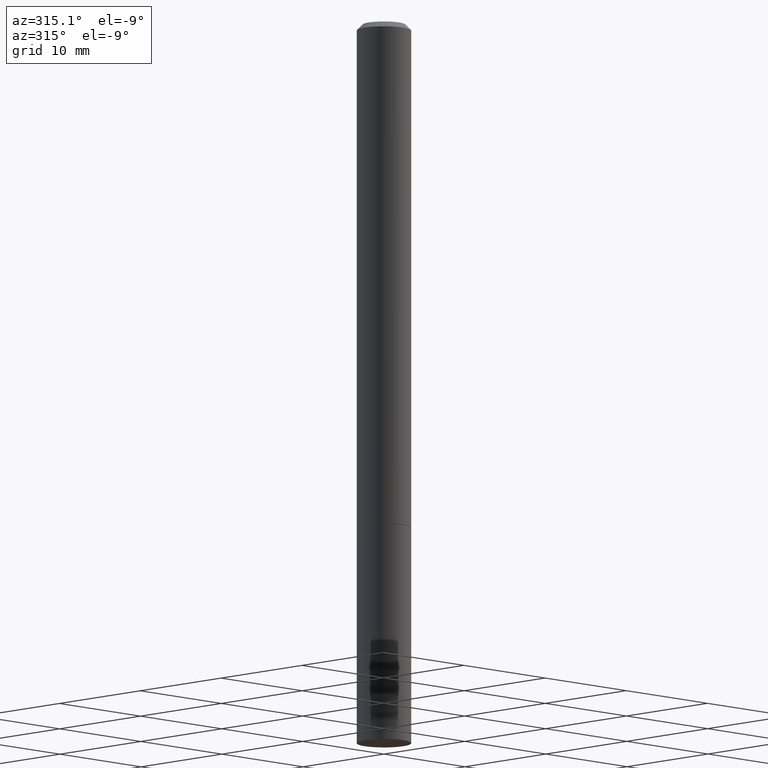
[diagram: clean part render]
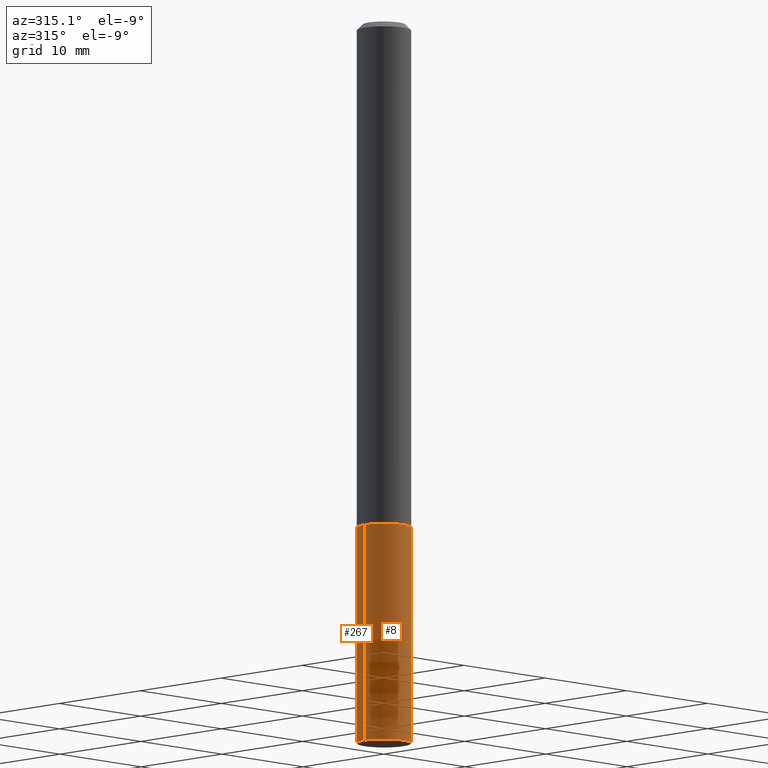
[diagram: same view with one multi-face feature highlighted, each face labeled with its STEP entity id]
A machine part, auxiliary view. The highlighted faces form ONE feature: a constant-radius fillet chain: 2 tangent blend faces with common blend radius 2.3813 mm. The faces share edges in the B-rep.
Their STEP definitions:
[1] entity #8 (Cylinder):
#8 = ADVANCED_FACE ( 'NONE', ( #86 ), #178, .T. ) ;
#11 = DIRECTION ( 'NONE',  ( -2.445468806185136597E-29, 3.491481338843145583E-15, 1.000000000000000000 ) ) ;
#13 = CARTESIAN_POINT ( 'NONE',  ( -0.09375000000000001388, -6.753264030266591277E-15, -2.500000000000000000 ) ) ;
#26 = ORIENTED_EDGE ( 'NONE', *, *, #179, .F. ) ;
#50 = ORIENTED_EDGE ( 'NONE', *, *, #289, .T. ) ;
#86 = FACE_OUTER_BOUND ( 'NONE', #199, .T. ) ;
#93 = AXIS2_PLACEMENT_3D ( 'NONE', #349, #352, #140 ) ;
#103 = EDGE_CURVE ( 'NONE', #322, #303, #159, .T. ) ;
#108 = CARTESIAN_POINT ( 'NONE',  ( 4.279570410823989044E-29, -6.110092342975505460E-15, -1.750000000000000222 ) ) ;
#123 = LINE ( 'NONE', #275, #283 ) ;
#140 = DIRECTION ( 'NONE',  ( 1.000000000000000000, -6.982962677686265922E-15, 4.876176775795935793E-29 ) ) ;
#153 = AXIS2_PLACEMENT_3D ( 'NONE', #202, #11, #200 ) ;
#159 = LINE ( 'NONE', #249, #348 ) ;
#178 = CYLINDRICAL_SURFACE ( 'NONE', #93, 0.09375000000000001388 ) ;
#179 = EDGE_CURVE ( 'NONE', #303, #231, #361, .T. ) ;
#191 = DIRECTION ( 'NONE',  ( -2.445468806185136877E-29, 3.491481338843145188E-15, 1.000000000000000000 ) ) ;
#194 = AXIS2_PLACEMENT_3D ( 'NONE', #108, #218, #336 ) ;
#199 = EDGE_LOOP ( 'NONE', ( #365, #50, #324, #26 ) ) ;
#200 = DIRECTION ( 'NONE',  ( 1.000000000000000000, -6.982962677686272233E-15, 0.000000000000000000 ) ) ;
#202 = CARTESIAN_POINT ( 'NONE',  ( 6.113672015462842613E-29, -8.728703347107864943E-15, -2.500000000000000000 ) ) ;
#213 = DIRECTION ( 'NONE',  ( -2.445468806185136877E-29, 3.491481338843145188E-15, 1.000000000000000000 ) ) ;
#218 = DIRECTION ( 'NONE',  ( -2.445468806185136597E-29, 3.491481338843145583E-15, 1.000000000000000000 ) ) ;
#231 = VERTEX_POINT ( 'NONE', #304 ) ;
#249 = CARTESIAN_POINT ( 'NONE',  ( -0.09375000000000001388, 6.661338147750940229E-16, -4.611501647113973995E-30 ) ) ;
#254 = EDGE_CURVE ( 'NONE', #290, #231, #123, .T. ) ;
#263 = CARTESIAN_POINT ( 'NONE',  ( -0.09375000000000001388, -6.753264030266591277E-15, -1.750000000000000222 ) ) ;
#275 = CARTESIAN_POINT ( 'NONE',  ( 0.09375000000000001388, -6.546527510330875041E-16, 4.571415727308690506E-30 ) ) ;
#283 = VECTOR ( 'NONE', #213, 39.37007874015748143 ) ;
#289 = EDGE_CURVE ( 'NONE', #322, #290, #308, .T. ) ;
#290 = VERTEX_POINT ( 'NONE', #353 ) ;
#303 = VERTEX_POINT ( 'NONE', #263 ) ;
#304 = CARTESIAN_POINT ( 'NONE',  ( 0.09375000000000001388, -6.764745094008592175E-15, -1.750000000000000222 ) ) ;
#308 = CIRCLE ( 'NONE', #153, 0.09375000000000001388 ) ;
#322 = VERTEX_POINT ( 'NONE', #13 ) ;
#324 = ORIENTED_EDGE ( 'NONE', *, *, #254, .T. ) ;
#336 = DIRECTION ( 'NONE',  ( 1.000000000000000000, -6.982962677686261189E-15, 0.000000000000000000 ) ) ;
#348 = VECTOR ( 'NONE', #191, 39.37007874015748143 ) ;
#349 = CARTESIAN_POINT ( 'NONE',  ( 0.000000000000000000, 0.000000000000000000, 0.000000000000000000 ) ) ;
#352 = DIRECTION ( 'NONE',  ( -2.445468806185136597E-29, 3.491481338843145583E-15, 1.000000000000000000 ) ) ;
#353 = CARTESIAN_POINT ( 'NONE',  ( 0.09375000000000001388, -9.383356098140953236E-15, -2.500000000000000000 ) ) ;
#361 = CIRCLE ( 'NONE', #194, 0.09375000000000001388 ) ;
#365 = ORIENTED_EDGE ( 'NONE', *, *, #103, .F. ) ;
[2] entity #267 (Cylinder):
#13 = CARTESIAN_POINT ( 'NONE',  ( -0.09375000000000001388, -6.753264030266591277E-15, -2.500000000000000000 ) ) ;
#27 = CIRCLE ( 'NONE', #331, 0.09375000000000001388 ) ;
#46 = DIRECTION ( 'NONE',  ( -2.445468806185136597E-29, 3.491481338843145583E-15, 1.000000000000000000 ) ) ;
#63 = AXIS2_PLACEMENT_3D ( 'NONE', #176, #173, #257 ) ;
#91 = DIRECTION ( 'NONE',  ( -2.445468806185136597E-29, 3.491481338843145583E-15, 1.000000000000000000 ) ) ;
#103 = EDGE_CURVE ( 'NONE', #322, #303, #159, .T. ) ;
#118 = DIRECTION ( 'NONE',  ( 1.000000000000000000, -6.982962677686265922E-15, 4.876176775795935793E-29 ) ) ;
#122 = FACE_OUTER_BOUND ( 'NONE', #131, .T. ) ;
#123 = LINE ( 'NONE', #275, #283 ) ;
#131 = EDGE_LOOP ( 'NONE', ( #154, #235, #170, #188 ) ) ;
#139 = DIRECTION ( 'NONE',  ( 1.000000000000000000, -6.982962677686261189E-15, 0.000000000000000000 ) ) ;
#154 = ORIENTED_EDGE ( 'NONE', *, *, #246, .T. ) ;
#159 = LINE ( 'NONE', #249, #348 ) ;
#166 = CARTESIAN_POINT ( 'NONE',  ( 4.279570410823989044E-29, -6.110092342975505460E-15, -1.750000000000000222 ) ) ;
#170 = ORIENTED_EDGE ( 'NONE', *, *, #197, .F. ) ;
#173 = DIRECTION ( 'NONE',  ( -2.445468806185136597E-29, 3.491481338843145583E-15, 1.000000000000000000 ) ) ;
#176 = CARTESIAN_POINT ( 'NONE',  ( 6.113672015462842613E-29, -8.728703347107864943E-15, -2.500000000000000000 ) ) ;
#183 = AXIS2_PLACEMENT_3D ( 'NONE', #323, #91, #118 ) ;
#188 = ORIENTED_EDGE ( 'NONE', *, *, #254, .F. ) ;
#191 = DIRECTION ( 'NONE',  ( -2.445468806185136877E-29, 3.491481338843145188E-15, 1.000000000000000000 ) ) ;
#197 = EDGE_CURVE ( 'NONE', #231, #303, #27, .T. ) ;
#209 = CYLINDRICAL_SURFACE ( 'NONE', #183, 0.09375000000000001388 ) ;
#213 = DIRECTION ( 'NONE',  ( -2.445468806185136877E-29, 3.491481338843145188E-15, 1.000000000000000000 ) ) ;
#231 = VERTEX_POINT ( 'NONE', #304 ) ;
#235 = ORIENTED_EDGE ( 'NONE', *, *, #103, .T. ) ;
#240 = CIRCLE ( 'NONE', #63, 0.09375000000000001388 ) ;
#246 = EDGE_CURVE ( 'NONE', #290, #322, #240, .T. ) ;
#249 = CARTESIAN_POINT ( 'NONE',  ( -0.09375000000000001388, 6.661338147750940229E-16, -4.611501647113973995E-30 ) ) ;
#254 = EDGE_CURVE ( 'NONE', #290, #231, #123, .T. ) ;
#257 = DIRECTION ( 'NONE',  ( 1.000000000000000000, -6.982962677686272233E-15, 0.000000000000000000 ) ) ;
#263 = CARTESIAN_POINT ( 'NONE',  ( -0.09375000000000001388, -6.753264030266591277E-15, -1.750000000000000222 ) ) ;
#267 = ADVANCED_FACE ( 'NONE', ( #122 ), #209, .T. ) ;
#275 = CARTESIAN_POINT ( 'NONE',  ( 0.09375000000000001388, -6.546527510330875041E-16, 4.571415727308690506E-30 ) ) ;
#283 = VECTOR ( 'NONE', #213, 39.37007874015748143 ) ;
#290 = VERTEX_POINT ( 'NONE', #353 ) ;
#303 = VERTEX_POINT ( 'NONE', #263 ) ;
#304 = CARTESIAN_POINT ( 'NONE',  ( 0.09375000000000001388, -6.764745094008592175E-15, -1.750000000000000222 ) ) ;
#322 = VERTEX_POINT ( 'NONE', #13 ) ;
#323 = CARTESIAN_POINT ( 'NONE',  ( 0.000000000000000000, 0.000000000000000000, 0.000000000000000000 ) ) ;
#331 = AXIS2_PLACEMENT_3D ( 'NONE', #166, #46, #139 ) ;
#348 = VECTOR ( 'NONE', #191, 39.37007874015748143 ) ;
#353 = CARTESIAN_POINT ( 'NONE',  ( 0.09375000000000001388, -9.383356098140953236E-15, -2.500000000000000000 ) ) ;